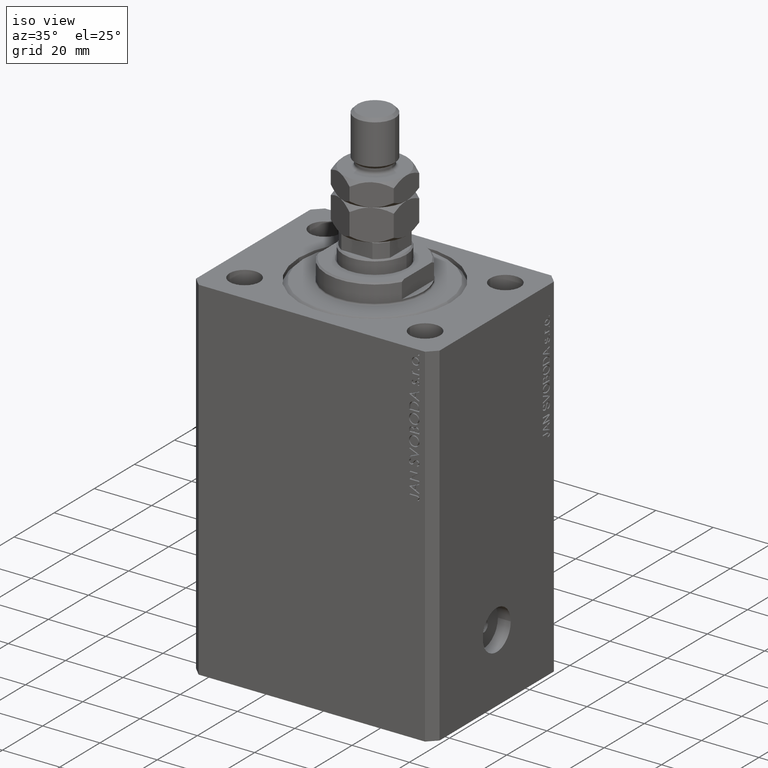
[diagram: clean part render]
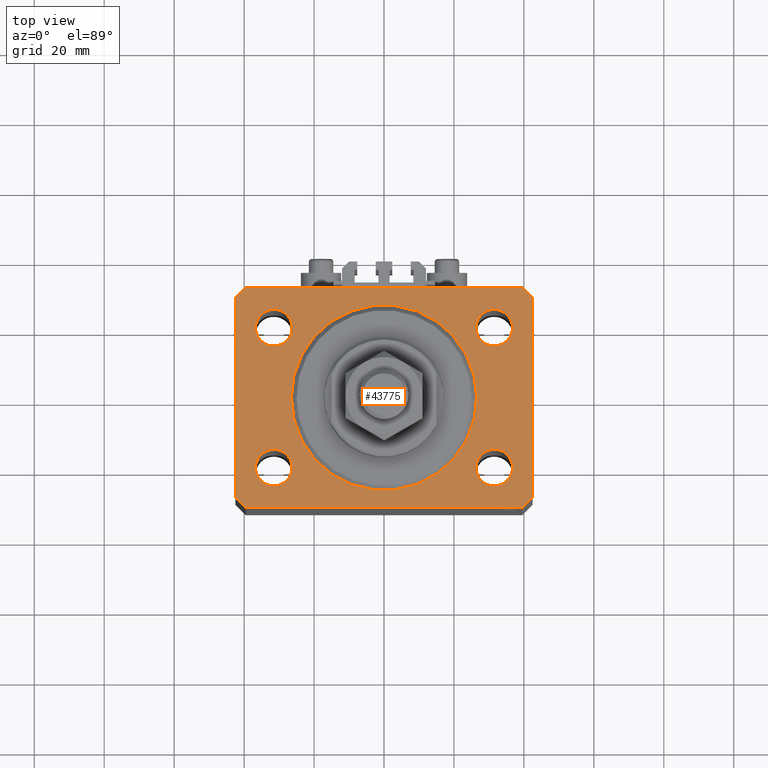
[diagram: tour spotlight — one face highlighted and labeled with its STEP entity id]
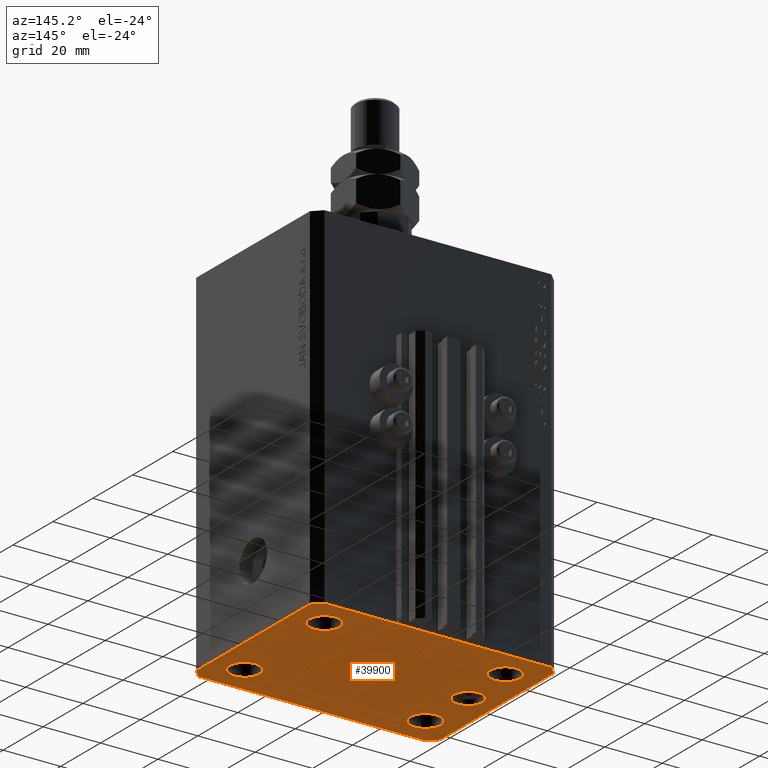
[diagram: tour spotlight — one face highlighted and labeled with its STEP entity id]
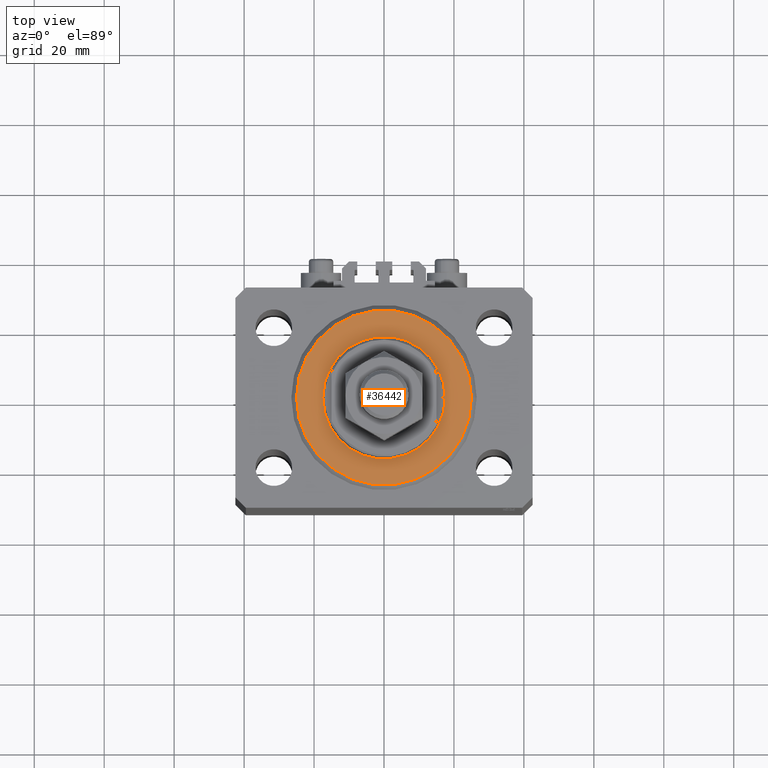
[diagram: tour spotlight — one face highlighted and labeled with its STEP entity id]
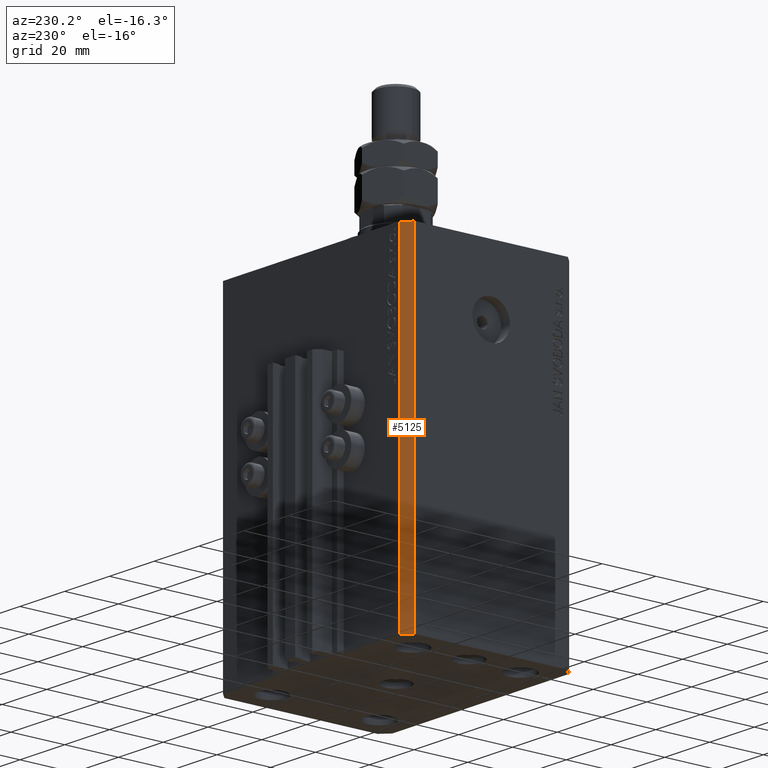
[diagram: tour spotlight — one face highlighted and labeled with its STEP entity id]
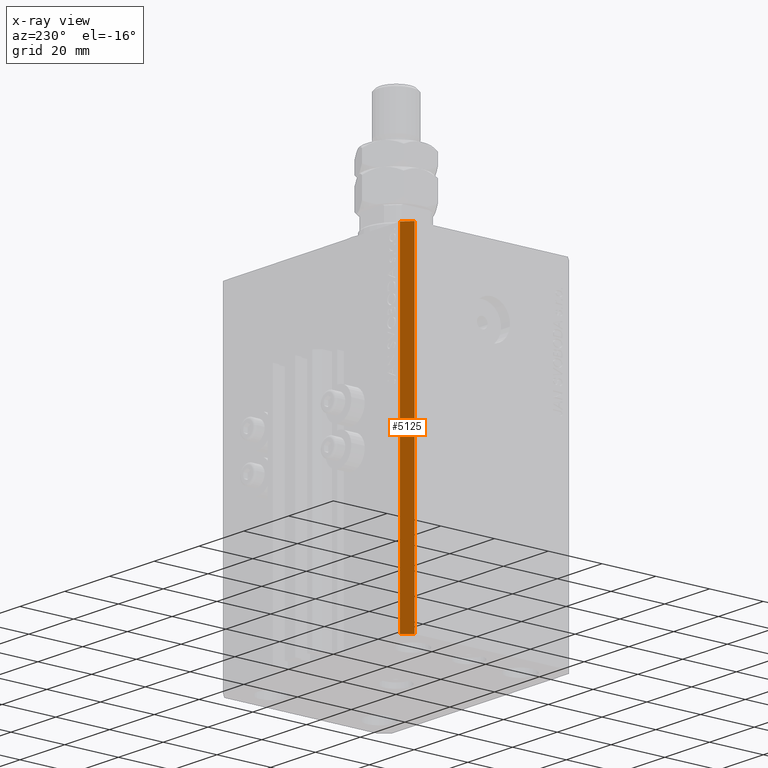
[diagram: x-ray of the same camera — body ghosted, this tour face saturated]
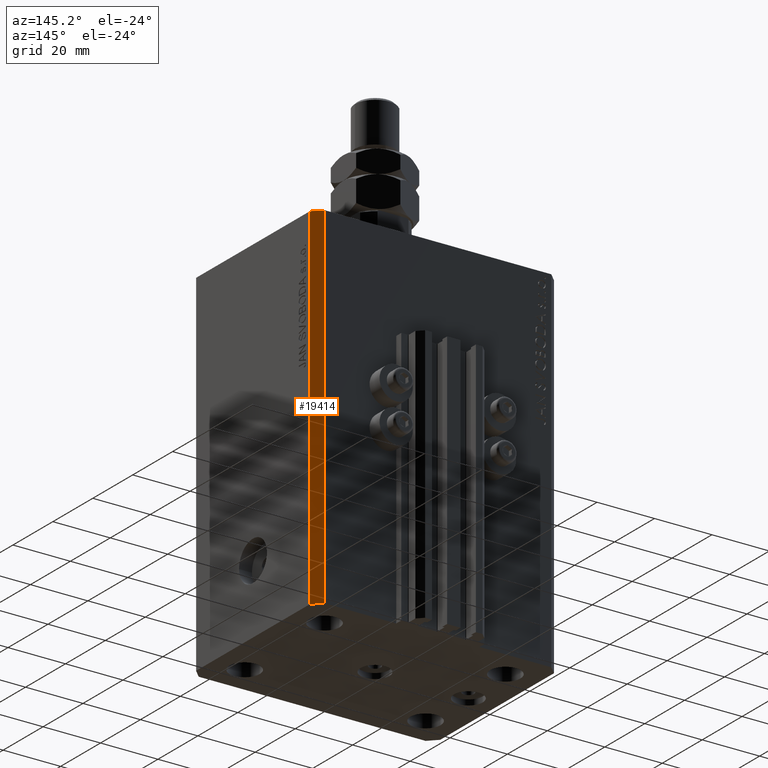
[diagram: tour spotlight — one face highlighted and labeled with its STEP entity id]
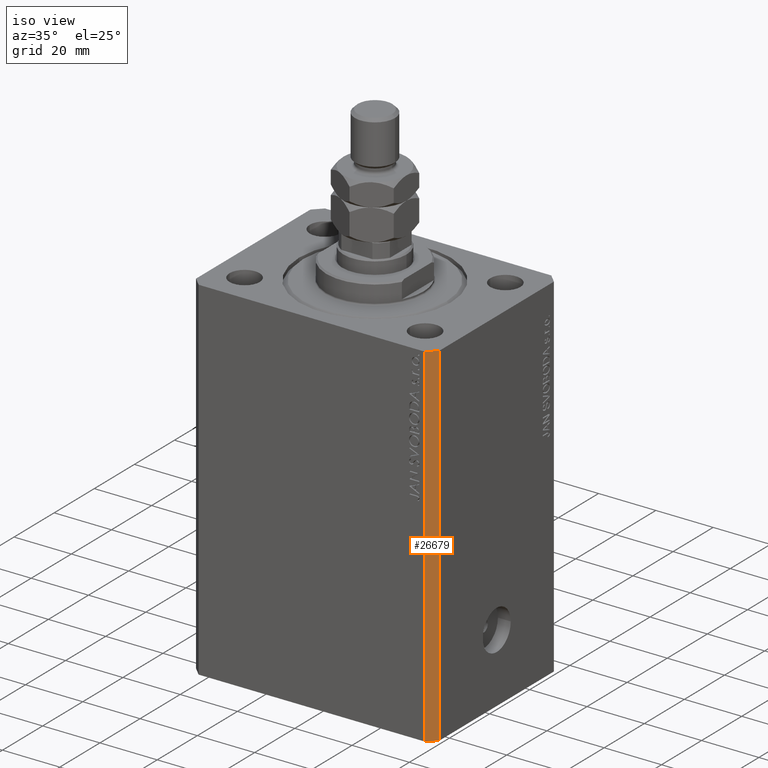
[diagram: tour spotlight — one face highlighted and labeled with its STEP entity id]
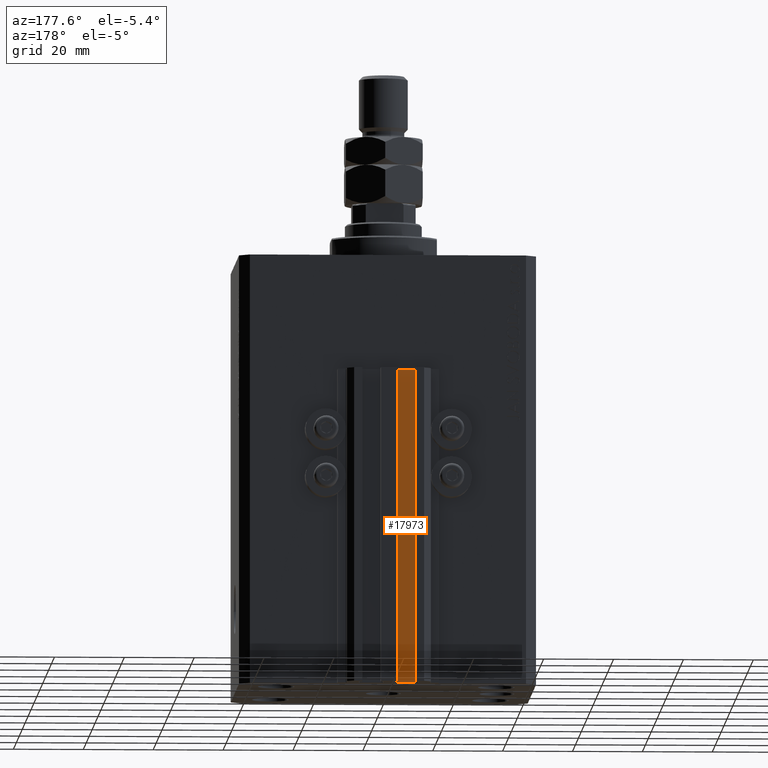
[diagram: tour spotlight — one face highlighted and labeled with its STEP entity id]
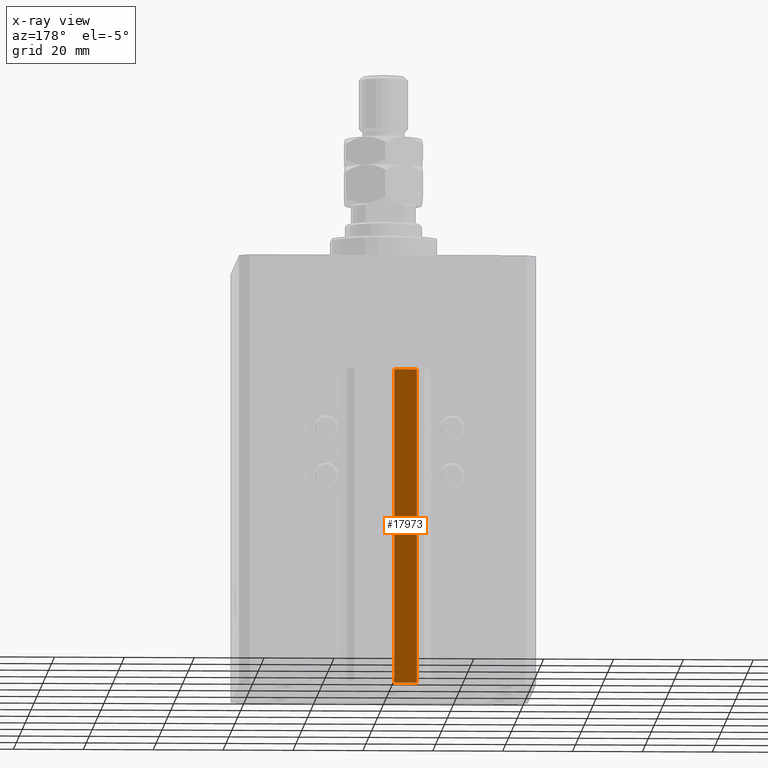
[diagram: x-ray of the same camera — body ghosted, this tour face saturated]
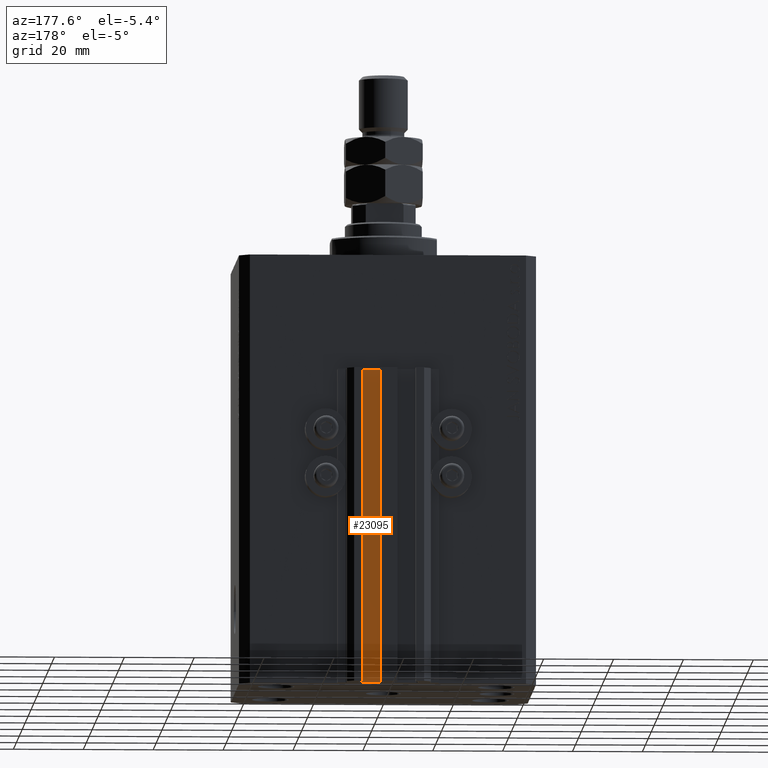
[diagram: tour spotlight — one face highlighted and labeled with its STEP entity id]
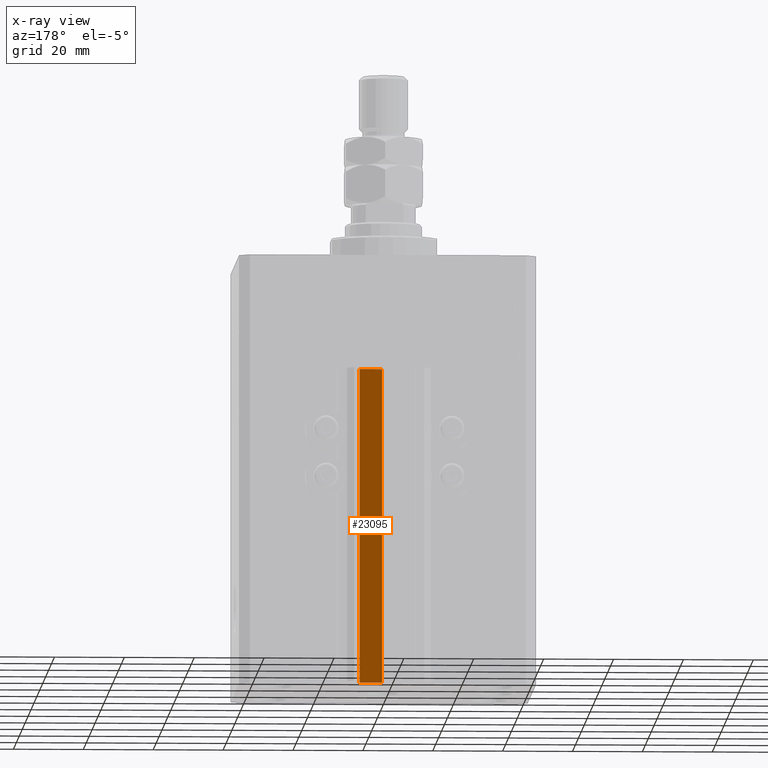
[diagram: x-ray of the same camera — body ghosted, this tour face saturated]
A machine part: a face-by-face anatomy tour. The part has 1087 B-rep faces; the first image is the clean iso view, then the 8 largest visible faces are spotlighted one at a time (largest first), each with its STEP entity span.

Face 1 — top view, entity #43775. In plain terms, the highlighted planar face has unit normal (0, 0, 1).
Definition (entity closure, byte-faithful):
#139 = VECTOR ( 'NONE', #23014, 1000.000000000000000 ) ;
#823 = VERTEX_POINT ( 'NONE', #31577 ) ;
#985 = VERTEX_POINT ( 'NONE', #48355 ) ;
#1032 = EDGE_CURVE ( 'NONE', #16576, #11674, #11108, .T. ) ;
#1216 = DIRECTION ( 'NONE',  ( 0.000000000000000000, 0.000000000000000000, 1.000000000000000000 ) ) ;
#1394 = ORIENTED_EDGE ( 'NONE', *, *, #23556, .F. ) ;
#1446 = AXIS2_PLACEMENT_3D ( 'NONE', #43666, #36008, #46896 ) ;
#1458 = LINE ( 'NONE', #43492, #2838 ) ;
#1476 = LINE ( 'NONE', #27708, #139 ) ;
#2078 = AXIS2_PLACEMENT_3D ( 'NONE', #15192, #30268, #23093 ) ;
#2112 = EDGE_LOOP ( 'NONE', ( #11730, #44661 ) ) ;
#2352 = LINE ( 'NONE', #27861, #5747 ) ;
#2838 = VECTOR ( 'NONE', #42991, 1000.000000000000114 ) ;
#3402 = VERTEX_POINT ( 'NONE', #16706 ) ;
#3765 = FACE_BOUND ( 'NONE', #2112, .T. ) ;
#4322 = DIRECTION ( 'NONE',  ( 1.000000000000000000, 0.000000000000000000, 0.000000000000000000 ) ) ;
#4378 = VERTEX_POINT ( 'NONE', #39153 ) ;
#4580 = CARTESIAN_POINT ( 'NONE',  ( 31.49999999999999289, -20.00000000000000355, 0.000000000000000000 ) ) ;
#4624 = DIRECTION ( 'NONE',  ( 0.000000000000000000, 0.000000000000000000, 1.000000000000000000 ) ) ;
#4788 = ORIENTED_EDGE ( 'NONE', *, *, #18865, .F. ) ;
#5174 = LINE ( 'NONE', #31161, #5477 ) ;
#5277 = EDGE_CURVE ( 'NONE', #42445, #5379, #20126, .T. ) ;
#5379 = VERTEX_POINT ( 'NONE', #39884 ) ;
#5430 = CARTESIAN_POINT ( 'NONE',  ( -31.49999999999999289, -20.00000000000000355, 0.000000000000000000 ) ) ;
#5477 = VECTOR ( 'NONE', #27454, 1000.000000000000000 ) ;
#5747 = VECTOR ( 'NONE', #6074, 1000.000000000000000 ) ;
#6074 = DIRECTION ( 'NONE',  ( -1.000000000000000000, 0.000000000000000000, 0.000000000000000000 ) ) ;
#6339 = ORIENTED_EDGE ( 'NONE', *, *, #26488, .F. ) ;
#6608 = EDGE_CURVE ( 'NONE', #4378, #42721, #28903, .T. ) ;
#6704 = LINE ( 'NONE', #25008, #28900 ) ;
#6757 = ORIENTED_EDGE ( 'NONE', *, *, #5277, .T. ) ;
#7224 = DIRECTION ( 'NONE',  ( 0.000000000000000000, 0.000000000000000000, 1.000000000000000000 ) ) ;
#7372 = DIRECTION ( 'NONE',  ( 0.7071067811865483499, 0.7071067811865466846, 0.000000000000000000 ) ) ;
#7403 = AXIS2_PLACEMENT_3D ( 'NONE', #5430, #1216, #31886 ) ;
#7453 = EDGE_CURVE ( 'NONE', #12938, #3402, #6704, .T. ) ;
#7467 = PLANE ( 'NONE',  #11442 ) ;
#8303 = EDGE_CURVE ( 'NONE', #823, #985, #1458, .T. ) ;
#8701 = DIRECTION ( 'NONE',  ( 0.000000000000000000, 0.000000000000000000, 1.000000000000000000 ) ) ;
#10353 = DIRECTION ( 'NONE',  ( 0.000000000000000000, 0.000000000000000000, 1.000000000000000000 ) ) ;
#10517 = VERTEX_POINT ( 'NONE', #12388 ) ;
#11108 = CIRCLE ( 'NONE', #34804, 5.249999999999997335 ) ;
#11442 = AXIS2_PLACEMENT_3D ( 'NONE', #14653, #7224, #37393 ) ;
#11674 = VERTEX_POINT ( 'NONE', #19856 ) ;
#11730 = ORIENTED_EDGE ( 'NONE', *, *, #48433, .F. ) ;
#12299 = CARTESIAN_POINT ( 'NONE',  ( -31.50000000000000000, 19.99999999999999645, 0.000000000000000000 ) ) ;
#12388 = CARTESIAN_POINT ( 'NONE',  ( -26.25000000000000000, 19.99999999999999645, 0.000000000000000000 ) ) ;
#12938 = VERTEX_POINT ( 'NONE', #24239 ) ;
#14414 = FACE_BOUND ( 'NONE', #17965, .T. ) ;
#14653 = CARTESIAN_POINT ( 'NONE',  ( 0.000000000000000000, 0.000000000000000000, 0.000000000000000000 ) ) ;
#14856 = ORIENTED_EDGE ( 'NONE', *, *, #48038, .F. ) ;
#15076 = AXIS2_PLACEMENT_3D ( 'NONE', #23456, #38544, #16269 ) ;
#15192 = CARTESIAN_POINT ( 'NONE',  ( 0.000000000000000000, 0.000000000000000000, 0.000000000000000000 ) ) ;
#15324 = CARTESIAN_POINT ( 'NONE',  ( 42.50000000000000711, -28.50000000000000355, 0.000000000000000000 ) ) ;
#16205 = VECTOR ( 'NONE', #35212, 1000.000000000000000 ) ;
#16269 = DIRECTION ( 'NONE',  ( 1.000000000000000000, 0.000000000000000000, 0.000000000000000000 ) ) ;
#16445 = ORIENTED_EDGE ( 'NONE', *, *, #1032, .F. ) ;
#16480 = VERTEX_POINT ( 'NONE', #39597 ) ;
#16576 = VERTEX_POINT ( 'NONE', #21034 ) ;
#16706 = CARTESIAN_POINT ( 'NONE',  ( -39.50000000000000711, -31.50000000000000000, 0.000000000000000000 ) ) ;
#17132 = ORIENTED_EDGE ( 'NONE', *, *, #6608, .T. ) ;
#17571 = CARTESIAN_POINT ( 'NONE',  ( 31.49999999999999289, -20.00000000000000355, 0.000000000000000000 ) ) ;
#17965 = EDGE_LOOP ( 'NONE', ( #1394, #34712 ) ) ;
#18263 = CARTESIAN_POINT ( 'NONE',  ( 39.50000000000000711, -31.50000000000000000, 0.000000000000000000 ) ) ;
#18352 = FACE_BOUND ( 'NONE', #21113, .T. ) ;
#18559 = EDGE_LOOP ( 'NONE', ( #30188, #6757, #37425, #47856, #18688, #17132, #32035, #33955 ) ) ;
#18688 = ORIENTED_EDGE ( 'NONE', *, *, #27584, .T. ) ;
#18865 = EDGE_CURVE ( 'NONE', #37670, #38581, #44719, .T. ) ;
#18948 = EDGE_LOOP ( 'NONE', ( #37044, #14856 ) ) ;
#19408 = VERTEX_POINT ( 'NONE', #40777 ) ;
#19856 = CARTESIAN_POINT ( 'NONE',  ( 26.24999999999999645, -20.00000000000000355, 0.000000000000000000 ) ) ;
#20126 = LINE ( 'NONE', #34733, #16205 ) ;
#20188 = VECTOR ( 'NONE', #7372, 1000.000000000000000 ) ;
#20273 = VERTEX_POINT ( 'NONE', #28604 ) ;
#20753 = AXIS2_PLACEMENT_3D ( 'NONE', #39709, #32530, #20905 ) ;
#20905 = DIRECTION ( 'NONE',  ( 1.000000000000000000, 0.000000000000000000, 0.000000000000000000 ) ) ;
#21034 = CARTESIAN_POINT ( 'NONE',  ( 36.74999999999999289, -20.00000000000000355, 0.000000000000000000 ) ) ;
#21113 = EDGE_LOOP ( 'NONE', ( #27402, #4788 ) ) ;
#21759 = DIRECTION ( 'NONE',  ( 0.000000000000000000, 0.000000000000000000, 1.000000000000000000 ) ) ;
#21783 = DIRECTION ( 'NONE',  ( 0.7071067811865471286, -0.7071067811865479058, 0.000000000000000000 ) ) ;
#21883 = CARTESIAN_POINT ( 'NONE',  ( 36.75000000000000000, 19.99999999999999289, 0.000000000000000000 ) ) ;
#22199 = CARTESIAN_POINT ( 'NONE',  ( 26.50000000000000355, 0.000000000000000000, 0.000000000000000000 ) ) ;
#23014 = DIRECTION ( 'NONE',  ( 0.000000000000000000, -1.000000000000000000, 0.000000000000000000 ) ) ;
#23093 = DIRECTION ( 'NONE',  ( 1.000000000000000000, 0.000000000000000000, 0.000000000000000000 ) ) ;
#23456 = CARTESIAN_POINT ( 'NONE',  ( 0.000000000000000000, 0.000000000000000000, 0.000000000000000000 ) ) ;
#23556 = EDGE_CURVE ( 'NONE', #29880, #19408, #35381, .T. ) ;
#23664 = CIRCLE ( 'NONE', #26013, 5.249999999999997335 ) ;
#24239 = CARTESIAN_POINT ( 'NONE',  ( -42.50000000000000000, -28.50000000000000000, 0.000000000000000000 ) ) ;
#24326 = CARTESIAN_POINT ( 'NONE',  ( -36.74999999999999289, -20.00000000000000355, 0.000000000000000000 ) ) ;
#25008 = CARTESIAN_POINT ( 'NONE',  ( -42.50000000000000000, -28.50000000000000000, 0.000000000000000000 ) ) ;
#25730 = AXIS2_PLACEMENT_3D ( 'NONE', #12299, #4624, #35021 ) ;
#25874 = EDGE_CURVE ( 'NONE', #42721, #823, #35340, .T. ) ;
#26013 = AXIS2_PLACEMENT_3D ( 'NONE', #40987, #10353, #33570 ) ;
#26265 = FACE_BOUND ( 'NONE', #48735, .T. ) ;
#26488 = EDGE_CURVE ( 'NONE', #11674, #16576, #30735, .T. ) ;
#26697 = DIRECTION ( 'NONE',  ( 8.886653596232072440E-15, 1.000000000000000000, 0.000000000000000000 ) ) ;
#26903 = EDGE_CURVE ( 'NONE', #19408, #29880, #23664, .T. ) ;
#26908 = CIRCLE ( 'NONE', #15076, 26.50000000000000355 ) ;
#27402 = ORIENTED_EDGE ( 'NONE', *, *, #33572, .F. ) ;
#27454 = DIRECTION ( 'NONE',  ( 1.000000000000000000, 0.000000000000000000, 0.000000000000000000 ) ) ;
#27584 = EDGE_CURVE ( 'NONE', #3402, #4378, #5174, .T. ) ;
#27708 = CARTESIAN_POINT ( 'NONE',  ( -42.50000000000000000, 28.50000000000000000, 0.000000000000000000 ) ) ;
#27861 = CARTESIAN_POINT ( 'NONE',  ( 39.50000000000056843, 31.50000000000000000, 0.000000000000000000 ) ) ;
#28264 = CARTESIAN_POINT ( 'NONE',  ( 42.50000000000000711, -28.50000000000000355, 0.000000000000000000 ) ) ;
#28604 = CARTESIAN_POINT ( 'NONE',  ( -26.24999999999999289, -20.00000000000000355, 0.000000000000000000 ) ) ;
#28718 = CIRCLE ( 'NONE', #7403, 5.250000000000000888 ) ;
#28900 = VECTOR ( 'NONE', #21783, 1000.000000000000000 ) ;
#28903 = LINE ( 'NONE', #18263, #20188 ) ;
#28917 = CIRCLE ( 'NONE', #25730, 5.250000000000000888 ) ;
#29880 = VERTEX_POINT ( 'NONE', #21883 ) ;
#30188 = ORIENTED_EDGE ( 'NONE', *, *, #39933, .T. ) ;
#30268 = DIRECTION ( 'NONE',  ( 0.000000000000000000, 0.000000000000000000, 1.000000000000000000 ) ) ;
#30735 = CIRCLE ( 'NONE', #41757, 5.249999999999997335 ) ;
#31161 = CARTESIAN_POINT ( 'NONE',  ( -39.50000000000000711, -31.50000000000000000, 0.000000000000000000 ) ) ;
#31577 = CARTESIAN_POINT ( 'NONE',  ( 42.50000000000051870, 28.49999999999995381, 0.000000000000000000 ) ) ;
#31886 = DIRECTION ( 'NONE',  ( 1.000000000000000000, 0.000000000000000000, 0.000000000000000000 ) ) ;
#32035 = ORIENTED_EDGE ( 'NONE', *, *, #25874, .T. ) ;
#32065 = AXIS2_PLACEMENT_3D ( 'NONE', #42552, #8701, #39095 ) ;
#32530 = DIRECTION ( 'NONE',  ( 0.000000000000000000, 0.000000000000000000, 1.000000000000000000 ) ) ;
#32999 = CARTESIAN_POINT ( 'NONE',  ( -39.50000000000000711, 31.50000000000000000, 0.000000000000000000 ) ) ;
#33237 = EDGE_CURVE ( 'NONE', #5379, #12938, #1476, .T. ) ;
#33438 = FACE_BOUND ( 'NONE', #18948, .T. ) ;
#33570 = DIRECTION ( 'NONE',  ( 1.000000000000000000, 0.000000000000000000, 0.000000000000000000 ) ) ;
#33572 = EDGE_CURVE ( 'NONE', #38581, #37670, #26908, .T. ) ;
#33955 = ORIENTED_EDGE ( 'NONE', *, *, #8303, .T. ) ;
#34712 = ORIENTED_EDGE ( 'NONE', *, *, #26903, .F. ) ;
#34733 = CARTESIAN_POINT ( 'NONE',  ( -39.50000000000000711, 31.50000000000000000, 0.000000000000000000 ) ) ;
#34804 = AXIS2_PLACEMENT_3D ( 'NONE', #4580, #38930, #4322 ) ;
#35021 = DIRECTION ( 'NONE',  ( 1.000000000000000000, 0.000000000000000000, 0.000000000000000000 ) ) ;
#35212 = DIRECTION ( 'NONE',  ( -0.7071067811865471286, -0.7071067811865479058, 0.000000000000000000 ) ) ;
#35247 = CIRCLE ( 'NONE', #32065, 5.250000000000000888 ) ;
#35340 = LINE ( 'NONE', #15324, #48899 ) ;
#35381 = CIRCLE ( 'NONE', #1446, 5.249999999999997335 ) ;
#36008 = DIRECTION ( 'NONE',  ( 0.000000000000000000, 0.000000000000000000, 1.000000000000000000 ) ) ;
#37044 = ORIENTED_EDGE ( 'NONE', *, *, #39936, .F. ) ;
#37393 = DIRECTION ( 'NONE',  ( 1.000000000000000000, 0.000000000000000000, -0.000000000000000000 ) ) ;
#37425 = ORIENTED_EDGE ( 'NONE', *, *, #33237, .T. ) ;
#37670 = VERTEX_POINT ( 'NONE', #37715 ) ;
#37715 = CARTESIAN_POINT ( 'NONE',  ( -26.50000000000000355, 3.245314017740486554E-15, 0.000000000000000000 ) ) ;
#38544 = DIRECTION ( 'NONE',  ( 0.000000000000000000, 0.000000000000000000, 1.000000000000000000 ) ) ;
#38581 = VERTEX_POINT ( 'NONE', #22199 ) ;
#38930 = DIRECTION ( 'NONE',  ( 0.000000000000000000, 0.000000000000000000, 1.000000000000000000 ) ) ;
#39095 = DIRECTION ( 'NONE',  ( 1.000000000000000000, 0.000000000000000000, 0.000000000000000000 ) ) ;
#39153 = CARTESIAN_POINT ( 'NONE',  ( 39.50000000000000711, -31.50000000000000000, 0.000000000000000000 ) ) ;
#39597 = CARTESIAN_POINT ( 'NONE',  ( -36.75000000000000000, 19.99999999999999645, 0.000000000000000000 ) ) ;
#39709 = CARTESIAN_POINT ( 'NONE',  ( -31.50000000000000000, 19.99999999999999645, 0.000000000000000000 ) ) ;
#39884 = CARTESIAN_POINT ( 'NONE',  ( -42.50000000000000000, 28.50000000000000000, 0.000000000000000000 ) ) ;
#39933 = EDGE_CURVE ( 'NONE', #985, #42445, #2352, .T. ) ;
#39936 = EDGE_CURVE ( 'NONE', #10517, #16480, #42107, .T. ) ;
#40225 = VERTEX_POINT ( 'NONE', #24326 ) ;
#40777 = CARTESIAN_POINT ( 'NONE',  ( 26.25000000000000355, 19.99999999999999289, 0.000000000000000000 ) ) ;
#40987 = CARTESIAN_POINT ( 'NONE',  ( 31.50000000000000000, 19.99999999999999289, 0.000000000000000000 ) ) ;
#41336 = FACE_OUTER_BOUND ( 'NONE', #18559, .T. ) ;
#41689 = EDGE_CURVE ( 'NONE', #40225, #20273, #28718, .T. ) ;
#41757 = AXIS2_PLACEMENT_3D ( 'NONE', #17571, #21759, #47494 ) ;
#42107 = CIRCLE ( 'NONE', #20753, 5.250000000000000888 ) ;
#42445 = VERTEX_POINT ( 'NONE', #32999 ) ;
#42552 = CARTESIAN_POINT ( 'NONE',  ( -31.49999999999999289, -20.00000000000000355, 0.000000000000000000 ) ) ;
#42721 = VERTEX_POINT ( 'NONE', #28264 ) ;
#42991 = DIRECTION ( 'NONE',  ( -0.7071067811865356934, 0.7071067811865594521, 0.000000000000000000 ) ) ;
#43492 = CARTESIAN_POINT ( 'NONE',  ( 42.50000000000051870, 28.49999999999995381, 0.000000000000000000 ) ) ;
#43666 = CARTESIAN_POINT ( 'NONE',  ( 31.50000000000000000, 19.99999999999999289, 0.000000000000000000 ) ) ;
#43775 = ADVANCED_FACE ( 'NONE', ( #18352, #3765, #26265, #14414, #33438, #41336 ), #7467, .T. ) ;
#44661 = ORIENTED_EDGE ( 'NONE', *, *, #41689, .F. ) ;
#44719 = CIRCLE ( 'NONE', #2078, 26.50000000000000355 ) ;
#46896 = DIRECTION ( 'NONE',  ( 1.000000000000000000, 0.000000000000000000, 0.000000000000000000 ) ) ;
#47494 = DIRECTION ( 'NONE',  ( 1.000000000000000000, 0.000000000000000000, 0.000000000000000000 ) ) ;
#47856 = ORIENTED_EDGE ( 'NONE', *, *, #7453, .T. ) ;
#48038 = EDGE_CURVE ( 'NONE', #16480, #10517, #28917, .T. ) ;
#48355 = CARTESIAN_POINT ( 'NONE',  ( 39.50000000000056843, 31.50000000000000000, 0.000000000000000000 ) ) ;
#48433 = EDGE_CURVE ( 'NONE', #20273, #40225, #35247, .T. ) ;
#48735 = EDGE_LOOP ( 'NONE', ( #16445, #6339 ) ) ;
#48899 = VECTOR ( 'NONE', #26697, 1000.000000000000000 ) ;

Face 2 — auxiliary view, entity #39900. In plain terms, the highlighted planar face has unit normal (0, 0, 1).
Definition (entity closure, byte-faithful):
#468 = EDGE_CURVE ( 'NONE', #21604, #17541, #41866, .T. ) ;
#494 = ORIENTED_EDGE ( 'NONE', *, *, #37262, .F. ) ;
#564 = DIRECTION ( 'NONE',  ( 1.000000000000000000, 0.000000000000000000, 0.000000000000000000 ) ) ;
#697 = CARTESIAN_POINT ( 'NONE',  ( -27.50000000000000355, 6.123233995736762338E-16, -123.0000000000000000 ) ) ;
#781 = CIRCLE ( 'NONE', #26872, 5.250000000000000888 ) ;
#938 = VERTEX_POINT ( 'NONE', #2603 ) ;
#953 = AXIS2_PLACEMENT_3D ( 'NONE', #16597, #42806, #8952 ) ;
#1045 = DIRECTION ( 'NONE',  ( -0.000000000000000000, -0.000000000000000000, -1.000000000000000000 ) ) ;
#1092 = EDGE_CURVE ( 'NONE', #14675, #29222, #1602, .T. ) ;
#1602 = CIRCLE ( 'NONE', #15027, 5.250000000000000888 ) ;
#1856 = EDGE_LOOP ( 'NONE', ( #14190, #40818 ) ) ;
#1866 = PLANE ( 'NONE',  #38161 ) ;
#1933 = EDGE_CURVE ( 'NONE', #24571, #938, #5603, .T. ) ;
#1977 = EDGE_CURVE ( 'NONE', #44641, #28966, #35419, .T. ) ;
#2064 = VERTEX_POINT ( 'NONE', #32193 ) ;
#2365 = DIRECTION ( 'NONE',  ( 0.7071067811865471286, -0.7071067811865479058, 0.000000000000000000 ) ) ;
#2603 = CARTESIAN_POINT ( 'NONE',  ( 36.74999999999999289, -20.00000000000000355, -123.0000000000000000 ) ) ;
#3056 = ORIENTED_EDGE ( 'NONE', *, *, #6498, .F. ) ;
#3311 = CARTESIAN_POINT ( 'NONE',  ( 31.50000000000000000, 19.99999999999999289, -123.0000000000000000 ) ) ;
#3685 = DIRECTION ( 'NONE',  ( 1.000000000000000000, 0.000000000000000000, 0.000000000000000000 ) ) ;
#4095 = DIRECTION ( 'NONE',  ( 0.000000000000000000, 0.000000000000000000, -1.000000000000000000 ) ) ;
#4476 = VECTOR ( 'NONE', #16915, 1000.000000000000000 ) ;
#4627 = ORIENTED_EDGE ( 'NONE', *, *, #29852, .F. ) ;
#5421 = CARTESIAN_POINT ( 'NONE',  ( -42.50000000000000000, 28.50000000000000000, -123.0000000000000000 ) ) ;
#5603 = CIRCLE ( 'NONE', #13509, 5.249999999999997335 ) ;
#5999 = CARTESIAN_POINT ( 'NONE',  ( -32.50000000000000000, 0.000000000000000000, -123.0000000000000000 ) ) ;
#6159 = DIRECTION ( 'NONE',  ( 1.000000000000000000, 0.000000000000000000, 0.000000000000000000 ) ) ;
#6446 = ORIENTED_EDGE ( 'NONE', *, *, #29515, .F. ) ;
#6498 = EDGE_CURVE ( 'NONE', #29222, #14675, #36764, .T. ) ;
#6852 = CIRCLE ( 'NONE', #21855, 5.000000000000000000 ) ;
#6975 = DIRECTION ( 'NONE',  ( 0.000000000000000000, 0.000000000000000000, -1.000000000000000000 ) ) ;
#7502 = CARTESIAN_POINT ( 'NONE',  ( 39.50000000000056843, 31.50000000000000000, -123.0000000000000000 ) ) ;
#8119 = ORIENTED_EDGE ( 'NONE', *, *, #46030, .F. ) ;
#8124 = CARTESIAN_POINT ( 'NONE',  ( -5.000000000000000000, 0.000000000000000000, -123.0000000000000000 ) ) ;
#8205 = VERTEX_POINT ( 'NONE', #12937 ) ;
#8517 = EDGE_LOOP ( 'NONE', ( #12933, #8119 ) ) ;
#8952 = DIRECTION ( 'NONE',  ( 1.000000000000000000, 0.000000000000000000, 0.000000000000000000 ) ) ;
#9033 = CARTESIAN_POINT ( 'NONE',  ( 0.000000000000000000, 0.000000000000000000, -123.0000000000000000 ) ) ;
#9088 = EDGE_CURVE ( 'NONE', #17541, #23191, #12740, .T. ) ;
#9959 = EDGE_CURVE ( 'NONE', #24187, #2064, #44781, .T. ) ;
#10209 = DIRECTION ( 'NONE',  ( -1.000000000000000000, 0.000000000000000000, 0.000000000000000000 ) ) ;
#10312 = ORIENTED_EDGE ( 'NONE', *, *, #34766, .F. ) ;
#10515 = DIRECTION ( 'NONE',  ( 0.7071067811865483499, 0.7071067811865466846, 0.000000000000000000 ) ) ;
#10625 = CARTESIAN_POINT ( 'NONE',  ( 36.75000000000000000, 19.99999999999999289, -123.0000000000000000 ) ) ;
#10926 = VERTEX_POINT ( 'NONE', #697 ) ;
#10997 = CARTESIAN_POINT ( 'NONE',  ( -39.50000000000000711, -31.50000000000000000, -123.0000000000000000 ) ) ;
#11068 = CARTESIAN_POINT ( 'NONE',  ( -39.50000000000000711, -31.50000000000000000, -123.0000000000000000 ) ) ;
#11366 = DIRECTION ( 'NONE',  ( -0.000000000000000000, -0.000000000000000000, -1.000000000000000000 ) ) ;
#11370 = EDGE_CURVE ( 'NONE', #28347, #8205, #42429, .T. ) ;
#11389 = ORIENTED_EDGE ( 'NONE', *, *, #1977, .F. ) ;
#11756 = CARTESIAN_POINT ( 'NONE',  ( -26.25000000000000000, 19.99999999999999645, -123.0000000000000000 ) ) ;
#11783 = DIRECTION ( 'NONE',  ( -1.000000000000000000, 0.000000000000000000, 0.000000000000000000 ) ) ;
#12435 = AXIS2_PLACEMENT_3D ( 'NONE', #41266, #19266, #3685 ) ;
#12445 = CARTESIAN_POINT ( 'NONE',  ( 31.49999999999999289, -20.00000000000000355, -123.0000000000000000 ) ) ;
#12740 = LINE ( 'NONE', #20390, #4476 ) ;
#12933 = ORIENTED_EDGE ( 'NONE', *, *, #11370, .F. ) ;
#12937 = CARTESIAN_POINT ( 'NONE',  ( 26.25000000000000355, 19.99999999999999289, -123.0000000000000000 ) ) ;
#13509 = AXIS2_PLACEMENT_3D ( 'NONE', #12445, #1045, #564 ) ;
#13654 = AXIS2_PLACEMENT_3D ( 'NONE', #5999, #6975, #10209 ) ;
#13853 = CARTESIAN_POINT ( 'NONE',  ( -32.50000000000000000, 0.000000000000000000, -123.0000000000000000 ) ) ;
#13855 = AXIS2_PLACEMENT_3D ( 'NONE', #21235, #39321, #6159 ) ;
#14190 = ORIENTED_EDGE ( 'NONE', *, *, #43949, .F. ) ;
#14354 = EDGE_CURVE ( 'NONE', #31737, #43413, #44775, .T. ) ;
#14675 = VERTEX_POINT ( 'NONE', #42680 ) ;
#15027 = AXIS2_PLACEMENT_3D ( 'NONE', #27079, #35222, #42152 ) ;
#15512 = DIRECTION ( 'NONE',  ( 1.000000000000000000, 0.000000000000000000, 0.000000000000000000 ) ) ;
#15774 = EDGE_LOOP ( 'NONE', ( #43654, #21038, #11389, #4627, #6446, #45180, #10312, #43813 ) ) ;
#16597 = CARTESIAN_POINT ( 'NONE',  ( 31.49999999999999289, -20.00000000000000355, -123.0000000000000000 ) ) ;
#16725 = FACE_BOUND ( 'NONE', #19057, .T. ) ;
#16789 = EDGE_CURVE ( 'NONE', #40284, #19736, #29323, .T. ) ;
#16915 = DIRECTION ( 'NONE',  ( -0.7071067811865471286, -0.7071067811865479058, 0.000000000000000000 ) ) ;
#17105 = ORIENTED_EDGE ( 'NONE', *, *, #1092, .F. ) ;
#17169 = EDGE_CURVE ( 'NONE', #2064, #24187, #6852, .T. ) ;
#17445 = DIRECTION ( 'NONE',  ( 1.000000000000000000, 0.000000000000000000, -0.000000000000000000 ) ) ;
#17541 = VERTEX_POINT ( 'NONE', #26668 ) ;
#17602 = ORIENTED_EDGE ( 'NONE', *, *, #28401, .F. ) ;
#17946 = LINE ( 'NONE', #40677, #22982 ) ;
#17972 = ORIENTED_EDGE ( 'NONE', *, *, #1933, .F. ) ;
#19057 = EDGE_LOOP ( 'NONE', ( #17602, #21627 ) ) ;
#19206 = CIRCLE ( 'NONE', #13654, 4.999999999999997335 ) ;
#19266 = DIRECTION ( 'NONE',  ( -0.000000000000000000, -0.000000000000000000, -1.000000000000000000 ) ) ;
#19301 = DIRECTION ( 'NONE',  ( 0.000000000000000000, 0.000000000000000000, -1.000000000000000000 ) ) ;
#19736 = VERTEX_POINT ( 'NONE', #10997 ) ;
#19829 = VECTOR ( 'NONE', #27264, 1000.000000000000000 ) ;
#20390 = CARTESIAN_POINT ( 'NONE',  ( -39.50000000000000711, 31.50000000000000000, -123.0000000000000000 ) ) ;
#20629 = CARTESIAN_POINT ( 'NONE',  ( -36.75000000000000000, 19.99999999999999645, -123.0000000000000000 ) ) ;
#20823 = CARTESIAN_POINT ( 'NONE',  ( 39.50000000000056843, 31.50000000000000000, -123.0000000000000000 ) ) ;
#21038 = ORIENTED_EDGE ( 'NONE', *, *, #30585, .F. ) ;
#21094 = AXIS2_PLACEMENT_3D ( 'NONE', #35729, #23866, #32493 ) ;
#21154 = FACE_BOUND ( 'NONE', #39907, .T. ) ;
#21235 = CARTESIAN_POINT ( 'NONE',  ( -31.49999999999999289, -20.00000000000000355, -123.0000000000000000 ) ) ;
#21604 = VERTEX_POINT ( 'NONE', #20823 ) ;
#21627 = ORIENTED_EDGE ( 'NONE', *, *, #14354, .F. ) ;
#21855 = AXIS2_PLACEMENT_3D ( 'NONE', #41798, #19301, #34886 ) ;
#22051 = CARTESIAN_POINT ( 'NONE',  ( 42.50000000000051870, 28.49999999999995381, -123.0000000000000000 ) ) ;
#22375 = CARTESIAN_POINT ( 'NONE',  ( 42.50000000000000711, -28.50000000000000355, -123.0000000000000000 ) ) ;
#22503 = ORIENTED_EDGE ( 'NONE', *, *, #9959, .F. ) ;
#22982 = VECTOR ( 'NONE', #32537, 1000.000000000000114 ) ;
#23191 = VERTEX_POINT ( 'NONE', #5421 ) ;
#23866 = DIRECTION ( 'NONE',  ( -0.000000000000000000, -0.000000000000000000, -1.000000000000000000 ) ) ;
#23943 = DIRECTION ( 'NONE',  ( 0.000000000000000000, -1.000000000000000000, 0.000000000000000000 ) ) ;
#24187 = VERTEX_POINT ( 'NONE', #8124 ) ;
#24383 = FACE_BOUND ( 'NONE', #8517, .T. ) ;
#24408 = ORIENTED_EDGE ( 'NONE', *, *, #17169, .F. ) ;
#24426 = LINE ( 'NONE', #46455, #48256 ) ;
#24571 = VERTEX_POINT ( 'NONE', #28053 ) ;
#24626 = DIRECTION ( 'NONE',  ( 0.000000000000000000, 0.000000000000000000, 1.000000000000000000 ) ) ;
#25115 = CARTESIAN_POINT ( 'NONE',  ( -42.50000000000000000, -28.50000000000000000, -123.0000000000000000 ) ) ;
#25462 = CARTESIAN_POINT ( 'NONE',  ( -36.74999999999999289, -20.00000000000000355, -123.0000000000000000 ) ) ;
#26668 = CARTESIAN_POINT ( 'NONE',  ( -39.50000000000000711, 31.50000000000000000, -123.0000000000000000 ) ) ;
#26872 = AXIS2_PLACEMENT_3D ( 'NONE', #48699, #11366, #45223 ) ;
#27079 = CARTESIAN_POINT ( 'NONE',  ( -31.49999999999999289, -20.00000000000000355, -123.0000000000000000 ) ) ;
#27264 = DIRECTION ( 'NONE',  ( 8.886653596232072440E-15, 1.000000000000000000, 0.000000000000000000 ) ) ;
#27824 = CIRCLE ( 'NONE', #953, 5.249999999999997335 ) ;
#28039 = AXIS2_PLACEMENT_3D ( 'NONE', #3311, #47842, #32513 ) ;
#28053 = CARTESIAN_POINT ( 'NONE',  ( 26.24999999999999645, -20.00000000000000355, -123.0000000000000000 ) ) ;
#28347 = VERTEX_POINT ( 'NONE', #10625 ) ;
#28401 = EDGE_CURVE ( 'NONE', #43413, #31737, #781, .T. ) ;
#28937 = DIRECTION ( 'NONE',  ( 0.000000000000000000, 0.000000000000000000, -1.000000000000000000 ) ) ;
#28966 = VERTEX_POINT ( 'NONE', #22051 ) ;
#29222 = VERTEX_POINT ( 'NONE', #25462 ) ;
#29253 = CARTESIAN_POINT ( 'NONE',  ( -42.50000000000000000, -28.50000000000000000, -123.0000000000000000 ) ) ;
#29323 = LINE ( 'NONE', #25115, #43985 ) ;
#29515 = EDGE_CURVE ( 'NONE', #19736, #29644, #34059, .T. ) ;
#29644 = VERTEX_POINT ( 'NONE', #38257 ) ;
#29852 = EDGE_CURVE ( 'NONE', #29644, #44641, #37955, .T. ) ;
#30585 = EDGE_CURVE ( 'NONE', #28966, #21604, #17946, .T. ) ;
#31569 = FACE_BOUND ( 'NONE', #41792, .T. ) ;
#31737 = VERTEX_POINT ( 'NONE', #20629 ) ;
#32193 = CARTESIAN_POINT ( 'NONE',  ( 5.000000000000000000, 6.123233995736765296E-16, -123.0000000000000000 ) ) ;
#32493 = DIRECTION ( 'NONE',  ( 1.000000000000000000, 0.000000000000000000, 0.000000000000000000 ) ) ;
#32513 = DIRECTION ( 'NONE',  ( 1.000000000000000000, 0.000000000000000000, 0.000000000000000000 ) ) ;
#32537 = DIRECTION ( 'NONE',  ( -0.7071067811865356934, 0.7071067811865594521, 0.000000000000000000 ) ) ;
#32756 = CIRCLE ( 'NONE', #28039, 5.249999999999997335 ) ;
#33552 = AXIS2_PLACEMENT_3D ( 'NONE', #13853, #28937, #44019 ) ;
#34059 = LINE ( 'NONE', #11068, #35593 ) ;
#34766 = EDGE_CURVE ( 'NONE', #23191, #40284, #24426, .T. ) ;
#34886 = DIRECTION ( 'NONE',  ( -1.000000000000000000, 0.000000000000000000, 0.000000000000000000 ) ) ;
#35222 = DIRECTION ( 'NONE',  ( -0.000000000000000000, -0.000000000000000000, -1.000000000000000000 ) ) ;
#35419 = LINE ( 'NONE', #38883, #19829 ) ;
#35593 = VECTOR ( 'NONE', #15512, 1000.000000000000000 ) ;
#35718 = CARTESIAN_POINT ( 'NONE',  ( -37.50000000000000000, 0.000000000000000000, -123.0000000000000000 ) ) ;
#35729 = CARTESIAN_POINT ( 'NONE',  ( 31.50000000000000000, 19.99999999999999289, -123.0000000000000000 ) ) ;
#36167 = VECTOR ( 'NONE', #45579, 1000.000000000000000 ) ;
#36240 = CARTESIAN_POINT ( 'NONE',  ( 0.000000000000000000, 0.000000000000000000, -123.0000000000000000 ) ) ;
#36764 = CIRCLE ( 'NONE', #13855, 5.250000000000000888 ) ;
#37262 = EDGE_CURVE ( 'NONE', #938, #24571, #27824, .T. ) ;
#37955 = LINE ( 'NONE', #45114, #39508 ) ;
#38161 = AXIS2_PLACEMENT_3D ( 'NONE', #36240, #24626, #17445 ) ;
#38257 = CARTESIAN_POINT ( 'NONE',  ( 39.50000000000000711, -31.50000000000000000, -123.0000000000000000 ) ) ;
#38641 = VERTEX_POINT ( 'NONE', #35718 ) ;
#38883 = CARTESIAN_POINT ( 'NONE',  ( 42.50000000000000711, -28.50000000000000355, -123.0000000000000000 ) ) ;
#39321 = DIRECTION ( 'NONE',  ( -0.000000000000000000, -0.000000000000000000, -1.000000000000000000 ) ) ;
#39505 = EDGE_CURVE ( 'NONE', #10926, #38641, #19206, .T. ) ;
#39508 = VECTOR ( 'NONE', #10515, 1000.000000000000000 ) ;
#39900 = ADVANCED_FACE ( 'NONE', ( #46650, #43167, #31569, #21154, #24383, #16725, #47612 ), #1866, .F. ) ;
#39907 = EDGE_LOOP ( 'NONE', ( #494, #17972 ) ) ;
#40284 = VERTEX_POINT ( 'NONE', #29253 ) ;
#40677 = CARTESIAN_POINT ( 'NONE',  ( 42.50000000000051870, 28.49999999999995381, -123.0000000000000000 ) ) ;
#40818 = ORIENTED_EDGE ( 'NONE', *, *, #39505, .F. ) ;
#40822 = AXIS2_PLACEMENT_3D ( 'NONE', #9033, #4095, #11783 ) ;
#41266 = CARTESIAN_POINT ( 'NONE',  ( -31.50000000000000000, 19.99999999999999645, -123.0000000000000000 ) ) ;
#41792 = EDGE_LOOP ( 'NONE', ( #17105, #3056 ) ) ;
#41798 = CARTESIAN_POINT ( 'NONE',  ( 0.000000000000000000, 0.000000000000000000, -123.0000000000000000 ) ) ;
#41866 = LINE ( 'NONE', #7502, #36167 ) ;
#42152 = DIRECTION ( 'NONE',  ( 1.000000000000000000, 0.000000000000000000, 0.000000000000000000 ) ) ;
#42429 = CIRCLE ( 'NONE', #21094, 5.249999999999997335 ) ;
#42680 = CARTESIAN_POINT ( 'NONE',  ( -26.24999999999999289, -20.00000000000000355, -123.0000000000000000 ) ) ;
#42806 = DIRECTION ( 'NONE',  ( -0.000000000000000000, -0.000000000000000000, -1.000000000000000000 ) ) ;
#43167 = FACE_BOUND ( 'NONE', #1856, .T. ) ;
#43413 = VERTEX_POINT ( 'NONE', #11756 ) ;
#43654 = ORIENTED_EDGE ( 'NONE', *, *, #468, .F. ) ;
#43813 = ORIENTED_EDGE ( 'NONE', *, *, #9088, .F. ) ;
#43949 = EDGE_CURVE ( 'NONE', #38641, #10926, #45382, .T. ) ;
#43985 = VECTOR ( 'NONE', #2365, 1000.000000000000000 ) ;
#44019 = DIRECTION ( 'NONE',  ( -1.000000000000000000, 0.000000000000000000, 0.000000000000000000 ) ) ;
#44641 = VERTEX_POINT ( 'NONE', #22375 ) ;
#44775 = CIRCLE ( 'NONE', #12435, 5.250000000000000888 ) ;
#44781 = CIRCLE ( 'NONE', #40822, 5.000000000000000000 ) ;
#45114 = CARTESIAN_POINT ( 'NONE',  ( 39.50000000000000711, -31.50000000000000000, -123.0000000000000000 ) ) ;
#45180 = ORIENTED_EDGE ( 'NONE', *, *, #16789, .F. ) ;
#45223 = DIRECTION ( 'NONE',  ( 1.000000000000000000, 0.000000000000000000, 0.000000000000000000 ) ) ;
#45382 = CIRCLE ( 'NONE', #33552, 4.999999999999997335 ) ;
#45579 = DIRECTION ( 'NONE',  ( -1.000000000000000000, 0.000000000000000000, 0.000000000000000000 ) ) ;
#46030 = EDGE_CURVE ( 'NONE', #8205, #28347, #32756, .T. ) ;
#46087 = EDGE_LOOP ( 'NONE', ( #22503, #24408 ) ) ;
#46455 = CARTESIAN_POINT ( 'NONE',  ( -42.50000000000000000, 28.50000000000000000, -123.0000000000000000 ) ) ;
#46650 = FACE_BOUND ( 'NONE', #46087, .T. ) ;
#47612 = FACE_OUTER_BOUND ( 'NONE', #15774, .T. ) ;
#47842 = DIRECTION ( 'NONE',  ( -0.000000000000000000, -0.000000000000000000, -1.000000000000000000 ) ) ;
#48256 = VECTOR ( 'NONE', #23943, 1000.000000000000000 ) ;
#48699 = CARTESIAN_POINT ( 'NONE',  ( -31.50000000000000000, 19.99999999999999645, -123.0000000000000000 ) ) ;

Face 3 — top view, entity #36442. In plain terms, the highlighted planar face has unit normal (0, 0, -1).
Definition (entity closure, byte-faithful):
#328 = CARTESIAN_POINT ( 'NONE',  ( 24.99999999999998224, 0.000000000000000000, 0.000000000000000000 ) ) ;
#342 = VERTEX_POINT ( 'NONE', #38713 ) ;
#2091 = DIRECTION ( 'NONE',  ( -0.000000000000000000, -0.000000000000000000, -1.000000000000000000 ) ) ;
#2405 = FACE_BOUND ( 'NONE', #5007, .T. ) ;
#2513 = DIRECTION ( 'NONE',  ( -0.000000000000000000, -0.000000000000000000, -1.000000000000000000 ) ) ;
#2898 = DIRECTION ( 'NONE',  ( 1.000000000000000000, 0.000000000000000000, -0.000000000000000000 ) ) ;
#3324 = EDGE_CURVE ( 'NONE', #18168, #36559, #24583, .T. ) ;
#3337 = CIRCLE ( 'NONE', #31008, 17.50000000000000000 ) ;
#5007 = EDGE_LOOP ( 'NONE', ( #13162, #15755 ) ) ;
#5884 = FACE_OUTER_BOUND ( 'NONE', #44420, .T. ) ;
#8272 = EDGE_CURVE ( 'NONE', #36559, #18168, #36800, .T. ) ;
#8417 = DIRECTION ( 'NONE',  ( 1.000000000000000000, 0.000000000000000000, 0.000000000000000000 ) ) ;
#8787 = CARTESIAN_POINT ( 'NONE',  ( 0.000000000000000000, 0.000000000000000000, 0.000000000000000000 ) ) ;
#9043 = EDGE_CURVE ( 'NONE', #342, #9341, #15537, .T. ) ;
#9341 = VERTEX_POINT ( 'NONE', #38148 ) ;
#11554 = AXIS2_PLACEMENT_3D ( 'NONE', #36398, #2513, #42760 ) ;
#11771 = DIRECTION ( 'NONE',  ( 0.000000000000000000, 0.000000000000000000, 1.000000000000000000 ) ) ;
#13162 = ORIENTED_EDGE ( 'NONE', *, *, #9043, .T. ) ;
#13771 = ORIENTED_EDGE ( 'NONE', *, *, #3324, .T. ) ;
#15537 = CIRCLE ( 'NONE', #42347, 17.50000000000000000 ) ;
#15755 = ORIENTED_EDGE ( 'NONE', *, *, #38534, .T. ) ;
#17499 = CARTESIAN_POINT ( 'NONE',  ( 0.000000000000000000, 0.000000000000000000, 0.000000000000000000 ) ) ;
#18168 = VERTEX_POINT ( 'NONE', #328 ) ;
#24583 = CIRCLE ( 'NONE', #43431, 24.99999999999998224 ) ;
#24605 = CARTESIAN_POINT ( 'NONE',  ( 0.000000000000000000, 0.000000000000000000, 0.000000000000000000 ) ) ;
#26184 = AXIS2_PLACEMENT_3D ( 'NONE', #17499, #36773, #2898 ) ;
#27193 = DIRECTION ( 'NONE',  ( 0.000000000000000000, 0.000000000000000000, 1.000000000000000000 ) ) ;
#28073 = DIRECTION ( 'NONE',  ( 1.000000000000000000, 0.000000000000000000, 0.000000000000000000 ) ) ;
#31008 = AXIS2_PLACEMENT_3D ( 'NONE', #42030, #27193, #8417 ) ;
#31458 = ORIENTED_EDGE ( 'NONE', *, *, #8272, .T. ) ;
#34745 = DIRECTION ( 'NONE',  ( 1.000000000000000000, 0.000000000000000000, 0.000000000000000000 ) ) ;
#36398 = CARTESIAN_POINT ( 'NONE',  ( 0.000000000000000000, 0.000000000000000000, 0.000000000000000000 ) ) ;
#36442 = ADVANCED_FACE ( 'NONE', ( #2405, #5884 ), #47423, .F. ) ;
#36559 = VERTEX_POINT ( 'NONE', #40245 ) ;
#36773 = DIRECTION ( 'NONE',  ( 0.000000000000000000, 0.000000000000000000, 1.000000000000000000 ) ) ;
#36800 = CIRCLE ( 'NONE', #11554, 24.99999999999998224 ) ;
#38148 = CARTESIAN_POINT ( 'NONE',  ( -17.50000000000000000, 2.143131898507868643E-15, 2.168404344971008868E-16 ) ) ;
#38534 = EDGE_CURVE ( 'NONE', #9341, #342, #3337, .T. ) ;
#38713 = CARTESIAN_POINT ( 'NONE',  ( 17.50000000000000000, 0.000000000000000000, 2.168404344971008868E-16 ) ) ;
#40245 = CARTESIAN_POINT ( 'NONE',  ( -24.99999999999998224, 3.153465507804433615E-15, 0.000000000000000000 ) ) ;
#42030 = CARTESIAN_POINT ( 'NONE',  ( 0.000000000000000000, 0.000000000000000000, 0.000000000000000000 ) ) ;
#42347 = AXIS2_PLACEMENT_3D ( 'NONE', #8787, #11771, #34745 ) ;
#42760 = DIRECTION ( 'NONE',  ( 1.000000000000000000, 0.000000000000000000, 0.000000000000000000 ) ) ;
#43431 = AXIS2_PLACEMENT_3D ( 'NONE', #24605, #2091, #28073 ) ;
#44420 = EDGE_LOOP ( 'NONE', ( #13771, #31458 ) ) ;
#47423 = PLANE ( 'NONE',  #26184 ) ;

Face 4 — auxiliary view, entity #5125. An x-ray twin of the same camera follows (body ghosted, this face saturated) — the face is partly hidden behind the body. In plain terms, the highlighted planar face has unit normal (-0.7071, 0.7071, 0).
Definition (entity closure, byte-faithful):
#1352 = VECTOR ( 'NONE', #27558, 1000.000000000000000 ) ;
#1571 = LINE ( 'NONE', #42389, #1352 ) ;
#3078 = DIRECTION ( 'NONE',  ( -0.7071067811865472397, -0.7071067811865479058, 0.000000000000000000 ) ) ;
#3323 = DIRECTION ( 'NONE',  ( -0.7071067811865479058, 0.7071067811865472397, 0.000000000000000000 ) ) ;
#4476 = VECTOR ( 'NONE', #16915, 1000.000000000000000 ) ;
#5125 = ADVANCED_FACE ( 'NONE', ( #18654 ), #29798, .T. ) ;
#5277 = EDGE_CURVE ( 'NONE', #42445, #5379, #20126, .T. ) ;
#5379 = VERTEX_POINT ( 'NONE', #39884 ) ;
#5421 = CARTESIAN_POINT ( 'NONE',  ( -42.50000000000000000, 28.50000000000000000, -123.0000000000000000 ) ) ;
#9088 = EDGE_CURVE ( 'NONE', #17541, #23191, #12740, .T. ) ;
#11255 = CARTESIAN_POINT ( 'NONE',  ( -39.50000000000000711, 31.50000000000000000, -123.0000000000000000 ) ) ;
#12308 = LINE ( 'NONE', #42452, #33219 ) ;
#12740 = LINE ( 'NONE', #20390, #4476 ) ;
#16114 = EDGE_CURVE ( 'NONE', #23191, #5379, #1571, .T. ) ;
#16205 = VECTOR ( 'NONE', #35212, 1000.000000000000000 ) ;
#16915 = DIRECTION ( 'NONE',  ( -0.7071067811865471286, -0.7071067811865479058, 0.000000000000000000 ) ) ;
#17541 = VERTEX_POINT ( 'NONE', #26668 ) ;
#18654 = FACE_OUTER_BOUND ( 'NONE', #47370, .T. ) ;
#19192 = ORIENTED_EDGE ( 'NONE', *, *, #29620, .F. ) ;
#20126 = LINE ( 'NONE', #34733, #16205 ) ;
#20189 = DIRECTION ( 'NONE',  ( 0.000000000000000000, 0.000000000000000000, 1.000000000000000000 ) ) ;
#20390 = CARTESIAN_POINT ( 'NONE',  ( -39.50000000000000711, 31.50000000000000000, -123.0000000000000000 ) ) ;
#23191 = VERTEX_POINT ( 'NONE', #5421 ) ;
#24419 = ORIENTED_EDGE ( 'NONE', *, *, #9088, .T. ) ;
#25491 = ORIENTED_EDGE ( 'NONE', *, *, #5277, .F. ) ;
#26668 = CARTESIAN_POINT ( 'NONE',  ( -39.50000000000000711, 31.50000000000000000, -123.0000000000000000 ) ) ;
#27247 = AXIS2_PLACEMENT_3D ( 'NONE', #11255, #3323, #3078 ) ;
#27558 = DIRECTION ( 'NONE',  ( 0.000000000000000000, 0.000000000000000000, 1.000000000000000000 ) ) ;
#29620 = EDGE_CURVE ( 'NONE', #17541, #42445, #12308, .T. ) ;
#29798 = PLANE ( 'NONE',  #27247 ) ;
#32999 = CARTESIAN_POINT ( 'NONE',  ( -39.50000000000000711, 31.50000000000000000, 0.000000000000000000 ) ) ;
#33219 = VECTOR ( 'NONE', #20189, 1000.000000000000000 ) ;
#34733 = CARTESIAN_POINT ( 'NONE',  ( -39.50000000000000711, 31.50000000000000000, 0.000000000000000000 ) ) ;
#35212 = DIRECTION ( 'NONE',  ( -0.7071067811865471286, -0.7071067811865479058, 0.000000000000000000 ) ) ;
#39884 = CARTESIAN_POINT ( 'NONE',  ( -42.50000000000000000, 28.50000000000000000, 0.000000000000000000 ) ) ;
#42389 = CARTESIAN_POINT ( 'NONE',  ( -42.50000000000000000, 28.50000000000000000, -123.0000000000000000 ) ) ;
#42445 = VERTEX_POINT ( 'NONE', #32999 ) ;
#42452 = CARTESIAN_POINT ( 'NONE',  ( -39.50000000000000711, 31.50000000000000000, -123.0000000000000000 ) ) ;
#47370 = EDGE_LOOP ( 'NONE', ( #25491, #19192, #24419, #47679 ) ) ;
#47679 = ORIENTED_EDGE ( 'NONE', *, *, #16114, .T. ) ;

Face 5 — auxiliary view, entity #19414. In plain terms, the highlighted planar face has unit normal (0.7071, 0.7071, 0).
Definition (entity closure, byte-faithful):
#823 = VERTEX_POINT ( 'NONE', #31577 ) ;
#898 = CARTESIAN_POINT ( 'NONE',  ( 42.50000000000051870, 28.49999999999995381, -123.0000000000000000 ) ) ;
#985 = VERTEX_POINT ( 'NONE', #48355 ) ;
#1458 = LINE ( 'NONE', #43492, #2838 ) ;
#2838 = VECTOR ( 'NONE', #42991, 1000.000000000000114 ) ;
#4620 = DIRECTION ( 'NONE',  ( -0.7071067811865355823, 0.7071067811865594521, 0.000000000000000000 ) ) ;
#6910 = PLANE ( 'NONE',  #19576 ) ;
#7508 = DIRECTION ( 'NONE',  ( 0.000000000000000000, 0.000000000000000000, 1.000000000000000000 ) ) ;
#8303 = EDGE_CURVE ( 'NONE', #823, #985, #1458, .T. ) ;
#17946 = LINE ( 'NONE', #40677, #22982 ) ;
#18175 = EDGE_CURVE ( 'NONE', #21604, #985, #29774, .T. ) ;
#18287 = FACE_OUTER_BOUND ( 'NONE', #35266, .T. ) ;
#19414 = ADVANCED_FACE ( 'NONE', ( #18287 ), #6910, .T. ) ;
#19576 = AXIS2_PLACEMENT_3D ( 'NONE', #898, #41017, #4620 ) ;
#19631 = ORIENTED_EDGE ( 'NONE', *, *, #30585, .T. ) ;
#20823 = CARTESIAN_POINT ( 'NONE',  ( 39.50000000000056843, 31.50000000000000000, -123.0000000000000000 ) ) ;
#21604 = VERTEX_POINT ( 'NONE', #20823 ) ;
#22051 = CARTESIAN_POINT ( 'NONE',  ( 42.50000000000051870, 28.49999999999995381, -123.0000000000000000 ) ) ;
#22982 = VECTOR ( 'NONE', #32537, 1000.000000000000114 ) ;
#26294 = VECTOR ( 'NONE', #28706, 1000.000000000000000 ) ;
#26302 = CARTESIAN_POINT ( 'NONE',  ( 39.50000000000056843, 31.50000000000000000, -123.0000000000000000 ) ) ;
#28706 = DIRECTION ( 'NONE',  ( 0.000000000000000000, 0.000000000000000000, 1.000000000000000000 ) ) ;
#28966 = VERTEX_POINT ( 'NONE', #22051 ) ;
#29774 = LINE ( 'NONE', #26302, #30599 ) ;
#30585 = EDGE_CURVE ( 'NONE', #28966, #21604, #17946, .T. ) ;
#30599 = VECTOR ( 'NONE', #7508, 1000.000000000000000 ) ;
#31165 = ORIENTED_EDGE ( 'NONE', *, *, #18175, .T. ) ;
#31577 = CARTESIAN_POINT ( 'NONE',  ( 42.50000000000051870, 28.49999999999995381, 0.000000000000000000 ) ) ;
#32537 = DIRECTION ( 'NONE',  ( -0.7071067811865356934, 0.7071067811865594521, 0.000000000000000000 ) ) ;
#32652 = ORIENTED_EDGE ( 'NONE', *, *, #38999, .F. ) ;
#35266 = EDGE_LOOP ( 'NONE', ( #43841, #32652, #19631, #31165 ) ) ;
#36614 = CARTESIAN_POINT ( 'NONE',  ( 42.50000000000051870, 28.49999999999995381, -123.0000000000000000 ) ) ;
#38999 = EDGE_CURVE ( 'NONE', #28966, #823, #43550, .T. ) ;
#40677 = CARTESIAN_POINT ( 'NONE',  ( 42.50000000000051870, 28.49999999999995381, -123.0000000000000000 ) ) ;
#41017 = DIRECTION ( 'NONE',  ( 0.7071067811865594521, 0.7071067811865355823, -0.000000000000000000 ) ) ;
#42991 = DIRECTION ( 'NONE',  ( -0.7071067811865356934, 0.7071067811865594521, 0.000000000000000000 ) ) ;
#43492 = CARTESIAN_POINT ( 'NONE',  ( 42.50000000000051870, 28.49999999999995381, 0.000000000000000000 ) ) ;
#43550 = LINE ( 'NONE', #36614, #26294 ) ;
#43841 = ORIENTED_EDGE ( 'NONE', *, *, #8303, .F. ) ;
#48355 = CARTESIAN_POINT ( 'NONE',  ( 39.50000000000056843, 31.50000000000000000, 0.000000000000000000 ) ) ;

Face 6 — iso view, entity #26679. In plain terms, the highlighted planar face has unit normal (0.7071, -0.7071, 0).
Definition (entity closure, byte-faithful):
#3948 = FACE_OUTER_BOUND ( 'NONE', #30598, .T. ) ;
#4337 = ORIENTED_EDGE ( 'NONE', *, *, #25806, .T. ) ;
#4378 = VERTEX_POINT ( 'NONE', #39153 ) ;
#6608 = EDGE_CURVE ( 'NONE', #4378, #42721, #28903, .T. ) ;
#7170 = DIRECTION ( 'NONE',  ( 0.7071067811865467956, -0.7071067811865483499, 0.000000000000000000 ) ) ;
#7372 = DIRECTION ( 'NONE',  ( 0.7071067811865483499, 0.7071067811865466846, 0.000000000000000000 ) ) ;
#7912 = DIRECTION ( 'NONE',  ( 0.000000000000000000, 0.000000000000000000, 1.000000000000000000 ) ) ;
#8773 = EDGE_CURVE ( 'NONE', #29644, #4378, #16739, .T. ) ;
#8897 = LINE ( 'NONE', #34858, #19682 ) ;
#10515 = DIRECTION ( 'NONE',  ( 0.7071067811865483499, 0.7071067811865466846, 0.000000000000000000 ) ) ;
#16739 = LINE ( 'NONE', #21165, #30543 ) ;
#18263 = CARTESIAN_POINT ( 'NONE',  ( 39.50000000000000711, -31.50000000000000000, 0.000000000000000000 ) ) ;
#19682 = VECTOR ( 'NONE', #7912, 1000.000000000000000 ) ;
#20188 = VECTOR ( 'NONE', #7372, 1000.000000000000000 ) ;
#21165 = CARTESIAN_POINT ( 'NONE',  ( 39.50000000000000711, -31.50000000000000000, -123.0000000000000000 ) ) ;
#22375 = CARTESIAN_POINT ( 'NONE',  ( 42.50000000000000711, -28.50000000000000355, -123.0000000000000000 ) ) ;
#23978 = ORIENTED_EDGE ( 'NONE', *, *, #29852, .T. ) ;
#24636 = DIRECTION ( 'NONE',  ( 0.000000000000000000, 0.000000000000000000, 1.000000000000000000 ) ) ;
#25231 = AXIS2_PLACEMENT_3D ( 'NONE', #48963, #7170, #48719 ) ;
#25806 = EDGE_CURVE ( 'NONE', #44641, #42721, #8897, .T. ) ;
#26679 = ADVANCED_FACE ( 'NONE', ( #3948 ), #48472, .T. ) ;
#28264 = CARTESIAN_POINT ( 'NONE',  ( 42.50000000000000711, -28.50000000000000355, 0.000000000000000000 ) ) ;
#28903 = LINE ( 'NONE', #18263, #20188 ) ;
#29644 = VERTEX_POINT ( 'NONE', #38257 ) ;
#29852 = EDGE_CURVE ( 'NONE', #29644, #44641, #37955, .T. ) ;
#30543 = VECTOR ( 'NONE', #24636, 1000.000000000000000 ) ;
#30598 = EDGE_LOOP ( 'NONE', ( #40092, #31655, #23978, #4337 ) ) ;
#31655 = ORIENTED_EDGE ( 'NONE', *, *, #8773, .F. ) ;
#34858 = CARTESIAN_POINT ( 'NONE',  ( 42.50000000000000711, -28.50000000000000355, -123.0000000000000000 ) ) ;
#37955 = LINE ( 'NONE', #45114, #39508 ) ;
#38257 = CARTESIAN_POINT ( 'NONE',  ( 39.50000000000000711, -31.50000000000000000, -123.0000000000000000 ) ) ;
#39153 = CARTESIAN_POINT ( 'NONE',  ( 39.50000000000000711, -31.50000000000000000, 0.000000000000000000 ) ) ;
#39508 = VECTOR ( 'NONE', #10515, 1000.000000000000000 ) ;
#40092 = ORIENTED_EDGE ( 'NONE', *, *, #6608, .F. ) ;
#42721 = VERTEX_POINT ( 'NONE', #28264 ) ;
#44641 = VERTEX_POINT ( 'NONE', #22375 ) ;
#45114 = CARTESIAN_POINT ( 'NONE',  ( 39.50000000000000711, -31.50000000000000000, -123.0000000000000000 ) ) ;
#48472 = PLANE ( 'NONE',  #25231 ) ;
#48719 = DIRECTION ( 'NONE',  ( 0.7071067811865483499, 0.7071067811865467956, 0.000000000000000000 ) ) ;
#48963 = CARTESIAN_POINT ( 'NONE',  ( 39.50000000000000711, -31.50000000000000000, -123.0000000000000000 ) ) ;

Face 7 — auxiliary view, entity #17973. An x-ray twin of the same camera follows (body ghosted, this face saturated) — the face is partly hidden behind the body. In plain terms, the highlighted planar face has unit normal (0, 1, 0).
Definition (entity closure, byte-faithful):
#1386 = AXIS2_PLACEMENT_3D ( 'NONE', #28311, #24597, #15980 ) ;
#1437 = DIRECTION ( 'NONE',  ( -1.000000000000000000, 0.000000000000000000, 0.000000000000000000 ) ) ;
#2624 = LINE ( 'NONE', #24173, #14261 ) ;
#6753 = VERTEX_POINT ( 'NONE', #8372 ) ;
#7689 = DIRECTION ( 'NONE',  ( 0.000000000000000000, 0.000000000000000000, 1.000000000000000000 ) ) ;
#8035 = EDGE_LOOP ( 'NONE', ( #25448, #27906, #44677, #28760 ) ) ;
#8372 = CARTESIAN_POINT ( 'NONE',  ( -1.800000000000000933, 33.50000000000000000, -123.0000000000000000 ) ) ;
#9932 = VECTOR ( 'NONE', #1437, 1000.000000000000000 ) ;
#10575 = EDGE_CURVE ( 'NONE', #45568, #23578, #30185, .T. ) ;
#10646 = DIRECTION ( 'NONE',  ( 0.000000000000000000, 0.000000000000000000, 1.000000000000000000 ) ) ;
#10840 = VECTOR ( 'NONE', #7689, 1000.000000000000000 ) ;
#13242 = FACE_OUTER_BOUND ( 'NONE', #8035, .T. ) ;
#14261 = VECTOR ( 'NONE', #43449, 1000.000000000000000 ) ;
#15980 = DIRECTION ( 'NONE',  ( 0.000000000000000000, 0.000000000000000000, 1.000000000000000000 ) ) ;
#17573 = LINE ( 'NONE', #29925, #27046 ) ;
#17973 = ADVANCED_FACE ( 'NONE', ( #13242 ), #35006, .T. ) ;
#19998 = CARTESIAN_POINT ( 'NONE',  ( -1.800000000000000933, 33.50000000000000000, -33.00000000000000000 ) ) ;
#21395 = CARTESIAN_POINT ( 'NONE',  ( -1.800000000000000933, 33.50000000000000000, -33.00000000000000000 ) ) ;
#22782 = VERTEX_POINT ( 'NONE', #21395 ) ;
#23578 = VERTEX_POINT ( 'NONE', #35775 ) ;
#23709 = LINE ( 'NONE', #19998, #9932 ) ;
#24173 = CARTESIAN_POINT ( 'NONE',  ( -1.800000000000000933, 33.50000000000000000, -123.0000000000000000 ) ) ;
#24597 = DIRECTION ( 'NONE',  ( 0.000000000000000000, 1.000000000000000000, -0.000000000000000000 ) ) ;
#25448 = ORIENTED_EDGE ( 'NONE', *, *, #47834, .F. ) ;
#27046 = VECTOR ( 'NONE', #10646, 1000.000000000000000 ) ;
#27906 = ORIENTED_EDGE ( 'NONE', *, *, #38287, .F. ) ;
#28311 = CARTESIAN_POINT ( 'NONE',  ( -1.800000000000000933, 33.50000000000000000, -123.0000000000000000 ) ) ;
#28760 = ORIENTED_EDGE ( 'NONE', *, *, #10575, .T. ) ;
#29925 = CARTESIAN_POINT ( 'NONE',  ( -1.800000000000000933, 33.50000000000000000, -123.0000000000000000 ) ) ;
#30185 = LINE ( 'NONE', #33893, #10840 ) ;
#33819 = EDGE_CURVE ( 'NONE', #6753, #45568, #2624, .T. ) ;
#33893 = CARTESIAN_POINT ( 'NONE',  ( -8.199999999999997513, 33.50000000000000000, -123.0000000000000000 ) ) ;
#35006 = PLANE ( 'NONE',  #1386 ) ;
#35775 = CARTESIAN_POINT ( 'NONE',  ( -8.199999999999997513, 33.50000000000000000, -33.00000000000000000 ) ) ;
#38287 = EDGE_CURVE ( 'NONE', #6753, #22782, #17573, .T. ) ;
#39518 = CARTESIAN_POINT ( 'NONE',  ( -8.199999999999997513, 33.50000000000000000, -123.0000000000000000 ) ) ;
#43449 = DIRECTION ( 'NONE',  ( -1.000000000000000000, 0.000000000000000000, 0.000000000000000000 ) ) ;
#44677 = ORIENTED_EDGE ( 'NONE', *, *, #33819, .T. ) ;
#45568 = VERTEX_POINT ( 'NONE', #39518 ) ;
#47834 = EDGE_CURVE ( 'NONE', #22782, #23578, #23709, .T. ) ;

Face 8 — auxiliary view, entity #23095. An x-ray twin of the same camera follows (body ghosted, this face saturated) — the face is partly hidden behind the body. In plain terms, the highlighted planar face has unit normal (0, 1, 0).
Definition (entity closure, byte-faithful):
#1736 = VERTEX_POINT ( 'NONE', #4593 ) ;
#2795 = DIRECTION ( 'NONE',  ( -1.000000000000000000, 0.000000000000000000, 0.000000000000000000 ) ) ;
#2962 = VECTOR ( 'NONE', #43274, 1000.000000000000000 ) ;
#4193 = DIRECTION ( 'NONE',  ( 0.000000000000000000, 1.000000000000000000, -0.000000000000000000 ) ) ;
#4593 = CARTESIAN_POINT ( 'NONE',  ( 8.199999999999999289, 33.50000000000000000, -33.00000000000000000 ) ) ;
#6028 = CARTESIAN_POINT ( 'NONE',  ( 8.199999999999999289, 33.50000000000000000, -33.00000000000000000 ) ) ;
#7253 = LINE ( 'NONE', #18375, #18855 ) ;
#7875 = EDGE_CURVE ( 'NONE', #35051, #22750, #43388, .T. ) ;
#8660 = FACE_OUTER_BOUND ( 'NONE', #38099, .T. ) ;
#9532 = CARTESIAN_POINT ( 'NONE',  ( 8.199999999999999289, 33.50000000000000000, -123.0000000000000000 ) ) ;
#11074 = ORIENTED_EDGE ( 'NONE', *, *, #24607, .F. ) ;
#13588 = ORIENTED_EDGE ( 'NONE', *, *, #31760, .F. ) ;
#14262 = ORIENTED_EDGE ( 'NONE', *, *, #7875, .T. ) ;
#14679 = DIRECTION ( 'NONE',  ( 0.000000000000000000, 0.000000000000000000, 1.000000000000000000 ) ) ;
#16126 = VERTEX_POINT ( 'NONE', #38926 ) ;
#18375 = CARTESIAN_POINT ( 'NONE',  ( 8.199999999999999289, 33.50000000000000000, -123.0000000000000000 ) ) ;
#18855 = VECTOR ( 'NONE', #14679, 1000.000000000000000 ) ;
#20381 = AXIS2_PLACEMENT_3D ( 'NONE', #41774, #4193, #23728 ) ;
#21888 = CARTESIAN_POINT ( 'NONE',  ( 1.800000000000000933, 33.50000000000000000, -123.0000000000000000 ) ) ;
#21967 = EDGE_CURVE ( 'NONE', #22750, #16126, #36108, .T. ) ;
#22750 = VERTEX_POINT ( 'NONE', #21888 ) ;
#22990 = PLANE ( 'NONE',  #20381 ) ;
#23095 = ADVANCED_FACE ( 'NONE', ( #8660 ), #22990, .T. ) ;
#23728 = DIRECTION ( 'NONE',  ( 0.000000000000000000, 0.000000000000000000, 1.000000000000000000 ) ) ;
#24598 = DIRECTION ( 'NONE',  ( -1.000000000000000000, 0.000000000000000000, 0.000000000000000000 ) ) ;
#24607 = EDGE_CURVE ( 'NONE', #35051, #1736, #7253, .T. ) ;
#24723 = CARTESIAN_POINT ( 'NONE',  ( 1.800000000000000933, 33.50000000000000000, -123.0000000000000000 ) ) ;
#24882 = ORIENTED_EDGE ( 'NONE', *, *, #21967, .T. ) ;
#31760 = EDGE_CURVE ( 'NONE', #1736, #16126, #32250, .T. ) ;
#32250 = LINE ( 'NONE', #6028, #41144 ) ;
#35051 = VERTEX_POINT ( 'NONE', #46631 ) ;
#36108 = LINE ( 'NONE', #24723, #2962 ) ;
#38099 = EDGE_LOOP ( 'NONE', ( #13588, #11074, #14262, #24882 ) ) ;
#38926 = CARTESIAN_POINT ( 'NONE',  ( 1.800000000000000933, 33.50000000000000000, -33.00000000000000000 ) ) ;
#39183 = VECTOR ( 'NONE', #24598, 1000.000000000000000 ) ;
#41144 = VECTOR ( 'NONE', #2795, 1000.000000000000000 ) ;
#41774 = CARTESIAN_POINT ( 'NONE',  ( 8.199999999999999289, 33.50000000000000000, -123.0000000000000000 ) ) ;
#43274 = DIRECTION ( 'NONE',  ( 0.000000000000000000, 0.000000000000000000, 1.000000000000000000 ) ) ;
#43388 = LINE ( 'NONE', #9532, #39183 ) ;
#46631 = CARTESIAN_POINT ( 'NONE',  ( 8.199999999999999289, 33.50000000000000000, -123.0000000000000000 ) ) ;